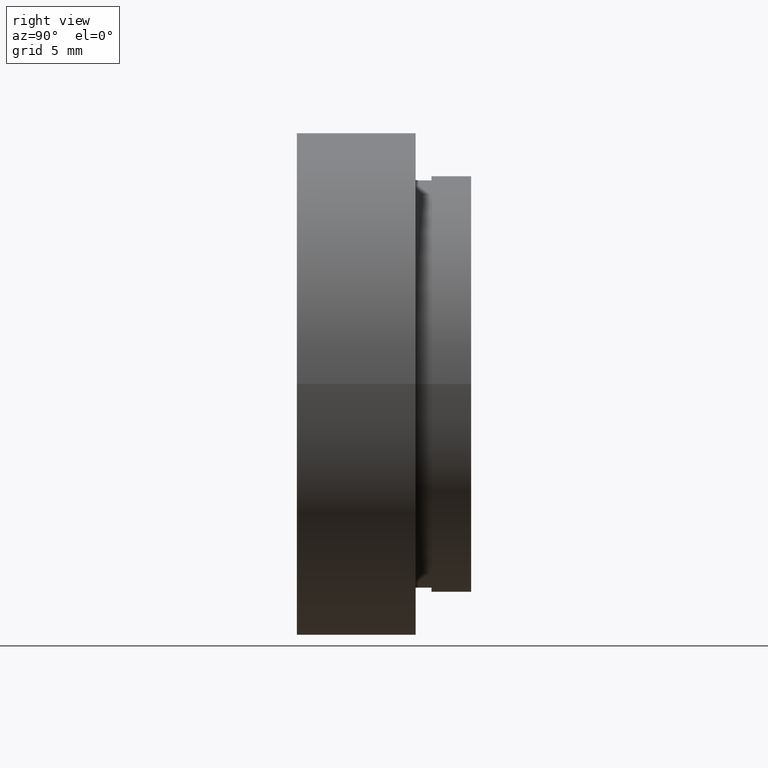
[diagram: clean part render]
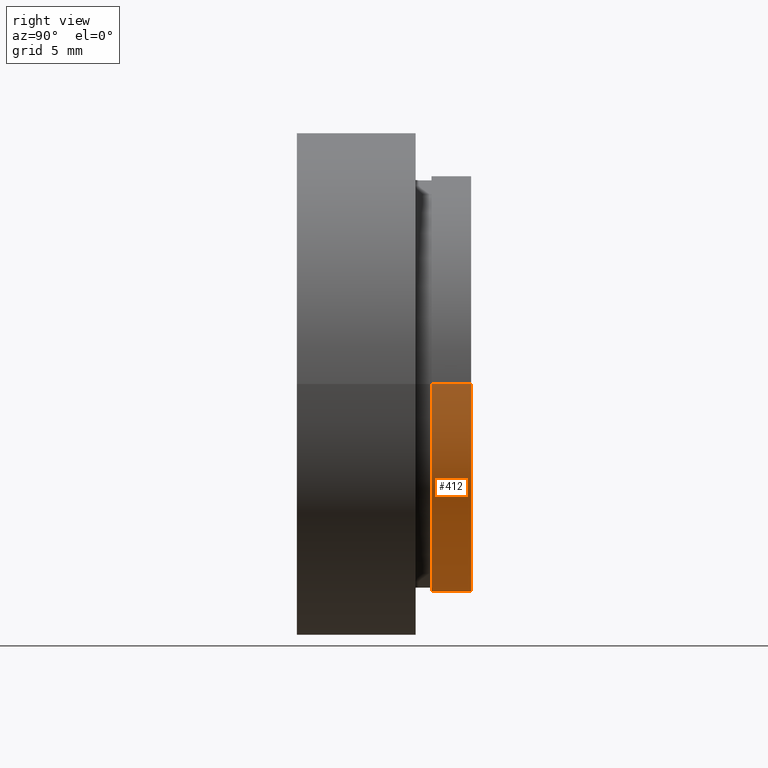
[diagram: same view with one face highlighted and labeled with its STEP entity id]
A machine part, right view. The second image highlights one B-rep face of the part: STEP entity #412.
In plain terms, the highlighted cylindrical surface (partial cylindrical patch) has radius 13.16 mm, axis along (-0, 1, -0).
Its self-contained STEP definition (entity closure, byte-faithful):
#11 = DIRECTION ( 'NONE',  ( -1.224646799147351000E-016, 1.000000000000000000, -0.0000000000000000000 ) ) ;
#44 = DIRECTION ( 'NONE',  ( -1.224646799147351000E-016, 1.000000000000000000, -0.0000000000000000000 ) ) ;
#113 = AXIS2_PLACEMENT_3D ( 'NONE', #514, #218, #463 ) ;
#118 = CARTESIAN_POINT ( 'NONE',  ( 1.026991039163387700E-015, 8.499999999999998200, 0.0000000000000000000 ) ) ;
#119 = DIRECTION ( 'NONE',  ( -1.224646799147351000E-016, 1.000000000000000000, -0.0000000000000000000 ) ) ;
#130 = DIRECTION ( 'NONE',  ( -1.000000000000000000, 0.0000000000000000000, 0.0000000000000000000 ) ) ;
#133 = CIRCLE ( 'NONE', #436, 13.15999999999999800 ) ;
#140 = CARTESIAN_POINT ( 'NONE',  ( -13.16000000000000000, 10.99999999999999500, 0.0000000000000000000 ) ) ;
#160 = VECTOR ( 'NONE', #44, 1000.000000000000000 ) ;
#178 = CARTESIAN_POINT ( 'NONE',  ( 13.15999999999999800, 16.88601823708207700, 1.611635187677916700E-015 ) ) ;
#182 = CARTESIAN_POINT ( 'NONE',  ( 0.0000000000000000000, 16.88601823708207700, 0.0000000000000000000 ) ) ;
#192 = ORIENTED_EDGE ( 'NONE', *, *, #400, .F. ) ;
#203 = CIRCLE ( 'NONE', #113, 13.16000000000000000 ) ;
#205 = VERTEX_POINT ( 'NONE', #140 ) ;
#212 = ORIENTED_EDGE ( 'NONE', *, *, #336, .F. ) ;
#215 = CARTESIAN_POINT ( 'NONE',  ( 13.16000000000000200, 8.500000000000000000, 1.611635187677917100E-015 ) ) ;
#218 = DIRECTION ( 'NONE',  ( -1.224646799147351000E-016, 1.000000000000000000, -0.0000000000000000000 ) ) ;
#258 = EDGE_LOOP ( 'NONE', ( #192, #372, #296, #212 ) ) ;
#261 = CARTESIAN_POINT ( 'NONE',  ( -13.15999999999999700, 8.499999999999996400, 0.0000000000000000000 ) ) ;
#290 = LINE ( 'NONE', #513, #396 ) ;
#296 = ORIENTED_EDGE ( 'NONE', *, *, #485, .T. ) ;
#301 = LINE ( 'NONE', #178, #160 ) ;
#323 = CYLINDRICAL_SURFACE ( 'NONE', #326, 13.15999999999999800 ) ;
#326 = AXIS2_PLACEMENT_3D ( 'NONE', #182, #422, #130 ) ;
#336 = EDGE_CURVE ( 'NONE', #504, #205, #203, .T. ) ;
#372 = ORIENTED_EDGE ( 'NONE', *, *, #416, .T. ) ;
#396 = VECTOR ( 'NONE', #11, 1000.000000000000000 ) ;
#400 = EDGE_CURVE ( 'NONE', #413, #504, #301, .T. ) ;
#412 = ADVANCED_FACE ( 'NONE', ( #544 ), #323, .T. ) ;
#413 = VERTEX_POINT ( 'NONE', #215 ) ;
#416 = EDGE_CURVE ( 'NONE', #413, #538, #133, .T. ) ;
#422 = DIRECTION ( 'NONE',  ( -1.224646799147351000E-016, 1.000000000000000000, -0.0000000000000000000 ) ) ;
#436 = AXIS2_PLACEMENT_3D ( 'NONE', #118, #119, #454 ) ;
#454 = DIRECTION ( 'NONE',  ( -1.000000000000000000, -1.318178933113075500E-016, 0.0000000000000000000 ) ) ;
#463 = DIRECTION ( 'NONE',  ( -1.000000000000000000, -1.318178933113075200E-016, 0.0000000000000000000 ) ) ;
#485 = EDGE_CURVE ( 'NONE', #538, #205, #290, .T. ) ;
#504 = VERTEX_POINT ( 'NONE', #520 ) ;
#513 = CARTESIAN_POINT ( 'NONE',  ( -13.15999999999999800, 16.88601823708207700, 0.0000000000000000000 ) ) ;
#514 = CARTESIAN_POINT ( 'NONE',  ( 7.208293393765502500E-016, 10.99999999999999600, 0.0000000000000000000 ) ) ;
#520 = CARTESIAN_POINT ( 'NONE',  ( 13.16000000000000200, 10.99999999999999800, 1.611635187677917100E-015 ) ) ;
#538 = VERTEX_POINT ( 'NONE', #261 ) ;
#544 = FACE_OUTER_BOUND ( 'NONE', #258, .T. ) ;